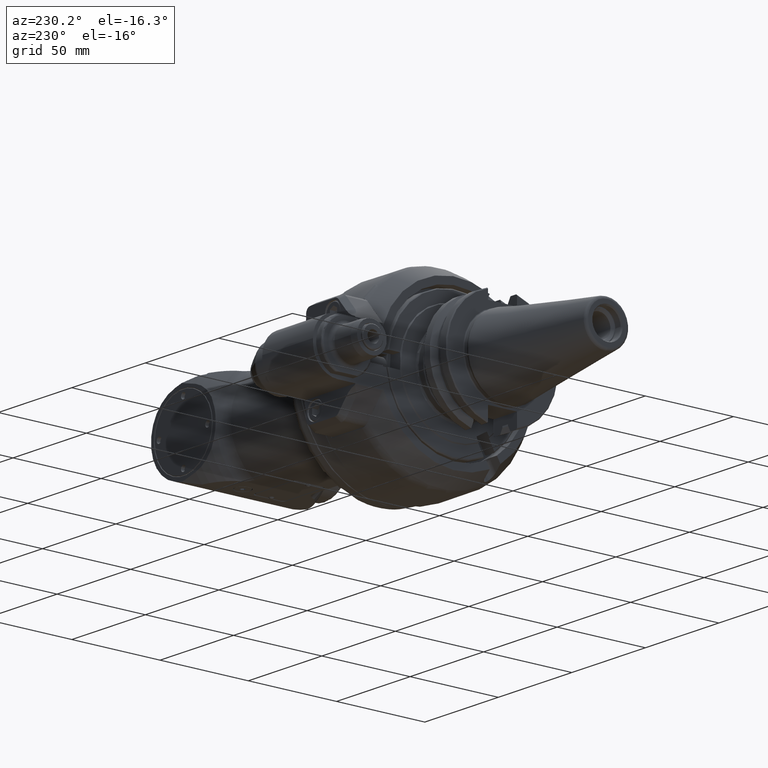
[diagram: clean part render]
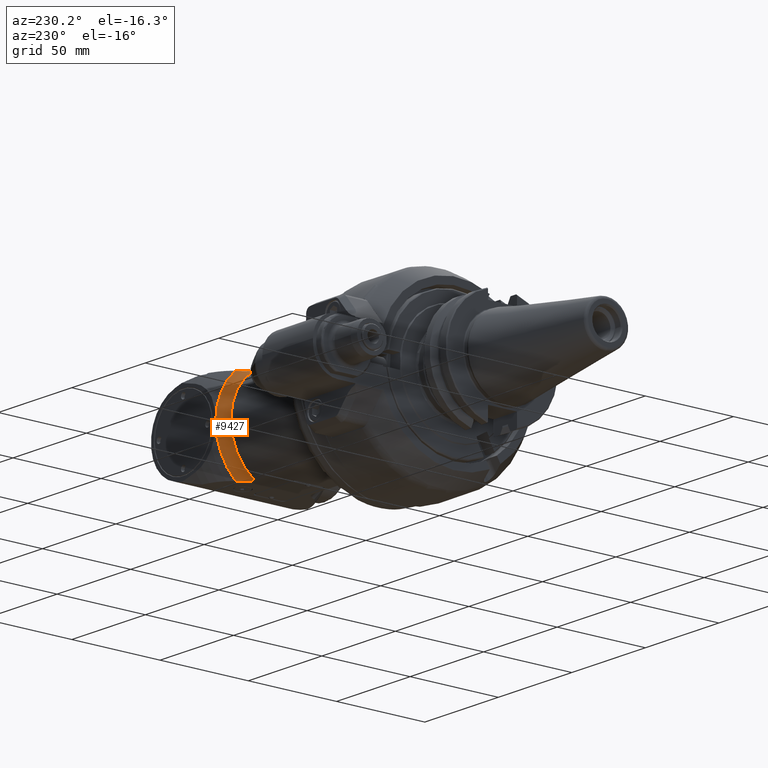
[diagram: same view with one face highlighted and labeled with its STEP entity id]
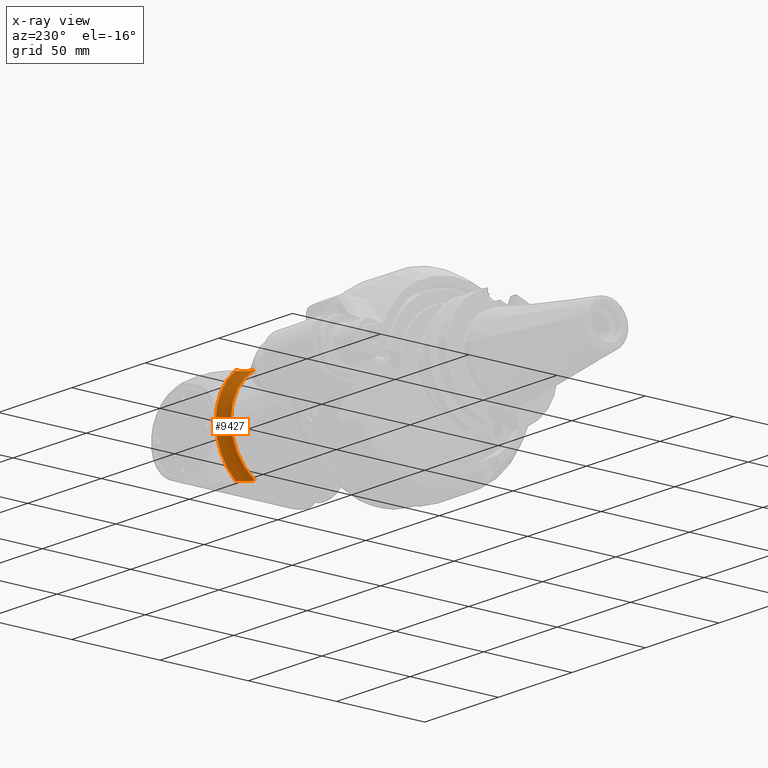
[diagram: x-ray of the same camera — body ghosted, the highlighted face saturated]
A machine part, auxiliary view. The second image highlights one B-rep face of the part: STEP entity #9427.
The next image is the same camera in x-ray: the body ghosted, the highlighted face saturated — about 0% of this face is hidden behind the body in this view.
In plain terms, the highlighted toroidal blend (fillet) surface has major radius 37 mm and minor (blend) radius 7 mm.
Its self-contained STEP definition (entity closure, byte-faithful):
#70=B_SPLINE_CURVE_WITH_KNOTS('',3,(#14315,#14316,#14317,#14318,#14319,
#14320,#14321,#14322,#14323,#14324,#14325,#14326,#14327,#14328),
 .UNSPECIFIED.,.F.,.F.,(4,2,2,2,2,2,4),(-2.49776209313838,-2.39437636672067,
-2.27902658183863,-2.12689265368834,-1.97475872553806,-1.78223567166734,
-1.66971058202039),.UNSPECIFIED.);
#84=B_SPLINE_CURVE_WITH_KNOTS('',3,(#15005,#15006,#15007,#15008,#15009,
#15010,#15011,#15012,#15013,#15014,#15015,#15016,#15017,#15018),
 .UNSPECIFIED.,.F.,.F.,(4,2,2,2,2,2,4),(-3.32581351682844,-3.21328851460942,
-3.0207654607387,-2.86863153258841,-2.71649760443813,-2.60114781955608,
-2.49776209313838),.UNSPECIFIED.);
#179=TOROIDAL_SURFACE('',#10290,37.,7.);
#2212=FACE_OUTER_BOUND('',#2853,.T.);
#2853=EDGE_LOOP('',(#7098,#7099,#7100,#7101,#7102));
#3486=CIRCLE('',#10226,30.);
#3515=CIRCLE('',#10289,33.5);
#3516=CIRCLE('',#10291,33.5);
#3942=VERTEX_POINT('',#14310);
#3943=VERTEX_POINT('',#14314);
#4118=VERTEX_POINT('',#14989);
#4121=VERTEX_POINT('',#15004);
#4172=VERTEX_POINT('',#15269);
#4920=EDGE_CURVE('',#3943,#3942,#70,.T.);
#5169=EDGE_CURVE('',#4118,#3943,#3486,.T.);
#5173=EDGE_CURVE('',#4121,#4118,#84,.T.);
#5254=EDGE_CURVE('',#4172,#3942,#3515,.T.);
#5255=EDGE_CURVE('',#4172,#4121,#3516,.T.);
#7098=ORIENTED_EDGE('',*,*,#5173,.T.);
#7099=ORIENTED_EDGE('',*,*,#5169,.T.);
#7100=ORIENTED_EDGE('',*,*,#4920,.T.);
#7101=ORIENTED_EDGE('',*,*,#5254,.F.);
#7102=ORIENTED_EDGE('',*,*,#5255,.T.);
#9427=ADVANCED_FACE('',(#2212),#179,.F.);
#10226=AXIS2_PLACEMENT_3D('',#14990,#11852,#11853);
#10289=AXIS2_PLACEMENT_3D('',#15273,#12004,#12005);
#10290=AXIS2_PLACEMENT_3D('',#15274,#12006,#12007);
#10291=AXIS2_PLACEMENT_3D('',#15275,#12008,#12009);
#11852=DIRECTION('center_axis',(1.,0.,0.));
#11853=DIRECTION('ref_axis',(0.,0.552770798392605,-0.833333333333308));
#12004=DIRECTION('center_axis',(1.,0.,0.));
#12005=DIRECTION('ref_axis',(0.,1.,0.));
#12006=DIRECTION('center_axis',(1.,0.,0.));
#12007=DIRECTION('ref_axis',(0.,1.,-1.22464679914735E-16));
#12008=DIRECTION('center_axis',(-1.,0.,0.));
#12009=DIRECTION('ref_axis',(0.,1.,0.));
#14310=CARTESIAN_POINT('',(88.0000007039945,22.2991045825147,24.999999638726));
#14314=CARTESIAN_POINT('',(81.93782221817,16.58312395178,25.));
#14315=CARTESIAN_POINT('Ctrl Pts',(81.93782221817,16.583123951777,25.));
#14316=CARTESIAN_POINT('Ctrl Pts',(82.282441306229,16.583123951777,25.));
#14317=CARTESIAN_POINT('Ctrl Pts',(82.6917353349449,16.6422520575151,25.));
#14318=CARTESIAN_POINT('Ctrl Pts',(83.3934489095303,16.8402713953867,25.));
#14319=CARTESIAN_POINT('Ctrl Pts',(83.8152160730215,17.0273586096957,25.));
#14320=CARTESIAN_POINT('Ctrl Pts',(84.5843919534727,17.478292191667,25.));
#14321=CARTESIAN_POINT('Ctrl Pts',(85.0206983836014,17.8190712330244,25.));
#14322=CARTESIAN_POINT('Ctrl Pts',(85.8122244578217,18.5891145938405,25.));
#14323=CARTESIAN_POINT('Ctrl Pts',(86.1684215512574,19.0173735566936,25.));
#14324=CARTESIAN_POINT('Ctrl Pts',(86.8418295870736,19.9481759632981,25.));
#14325=CARTESIAN_POINT('Ctrl Pts',(87.2036025382881,20.5518000895077,25.));
#14326=CARTESIAN_POINT('Ctrl Pts',(87.6935948326076,21.5500748791327,25.));
#14327=CARTESIAN_POINT('Ctrl Pts',(87.857028345229,21.927081426712,25.));
#14328=CARTESIAN_POINT('Ctrl Pts',(88.0000006189109,22.2991046152131,25.));
#14989=CARTESIAN_POINT('',(81.93782221817,16.58312395178,-25.));
#14990=CARTESIAN_POINT('Origin',(81.93782221817,0.,0.));
#15004=CARTESIAN_POINT('',(88.0000003213498,22.2991037343212,-24.9999998483868));
#15005=CARTESIAN_POINT('Ctrl Pts',(88.0000002856481,22.2991037480417,-25.));
#15006=CARTESIAN_POINT('Ctrl Pts',(87.8570280916677,21.9270808406783,-25.));
#15007=CARTESIAN_POINT('Ctrl Pts',(87.6935946921739,21.5500745930236,-25.));
#15008=CARTESIAN_POINT('Ctrl Pts',(87.2036025382881,20.5518000895077,-25.));
#15009=CARTESIAN_POINT('Ctrl Pts',(86.8418295870736,19.9481759632981,-25.));
#15010=CARTESIAN_POINT('Ctrl Pts',(86.1684215512574,19.0173735566936,-25.));
#15011=CARTESIAN_POINT('Ctrl Pts',(85.8122244578217,18.5891145938405,-25.));
#15012=CARTESIAN_POINT('Ctrl Pts',(85.0206983836014,17.8190712330244,-25.));
#15013=CARTESIAN_POINT('Ctrl Pts',(84.5843919534727,17.478292191667,-25.));
#15014=CARTESIAN_POINT('Ctrl Pts',(83.8152160730215,17.0273586096957,-25.));
#15015=CARTESIAN_POINT('Ctrl Pts',(83.3934489095303,16.8402713953867,-25.));
#15016=CARTESIAN_POINT('Ctrl Pts',(82.6917353349449,16.6422520575151,-25.));
#15017=CARTESIAN_POINT('Ctrl Pts',(82.282441306229,16.583123951777,-25.));
#15018=CARTESIAN_POINT('Ctrl Pts',(81.93782221817,16.583123951777,-25.));
#15269=CARTESIAN_POINT('',(88.00000004466,33.5,2.6645352591E-14));
#15273=CARTESIAN_POINT('Origin',(88.00000004466,0.,0.));
#15274=CARTESIAN_POINT('Origin',(81.93782221817,0.,0.));
#15275=CARTESIAN_POINT('Origin',(88.00000004466,0.,0.));